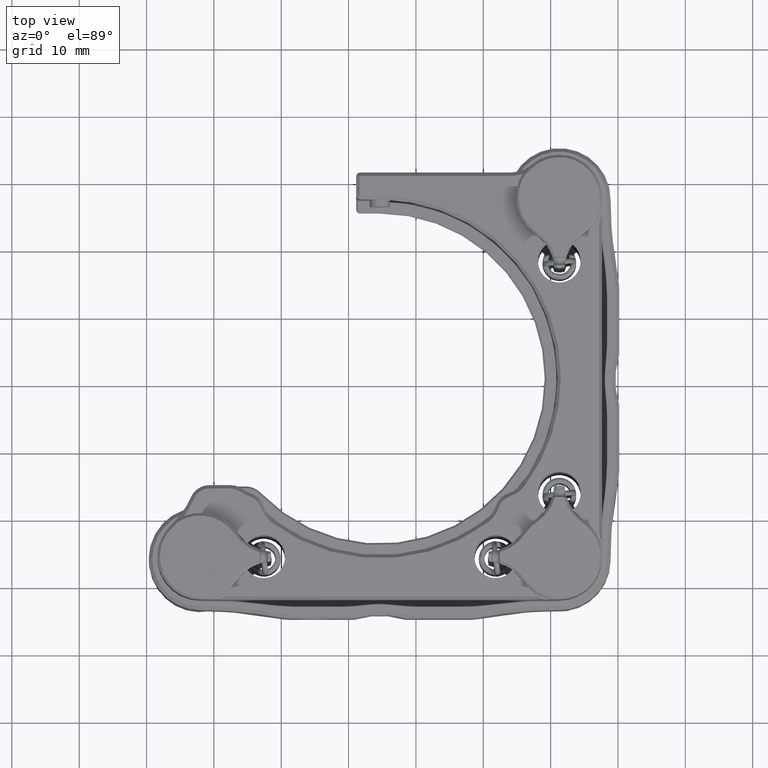
[diagram: clean part render]
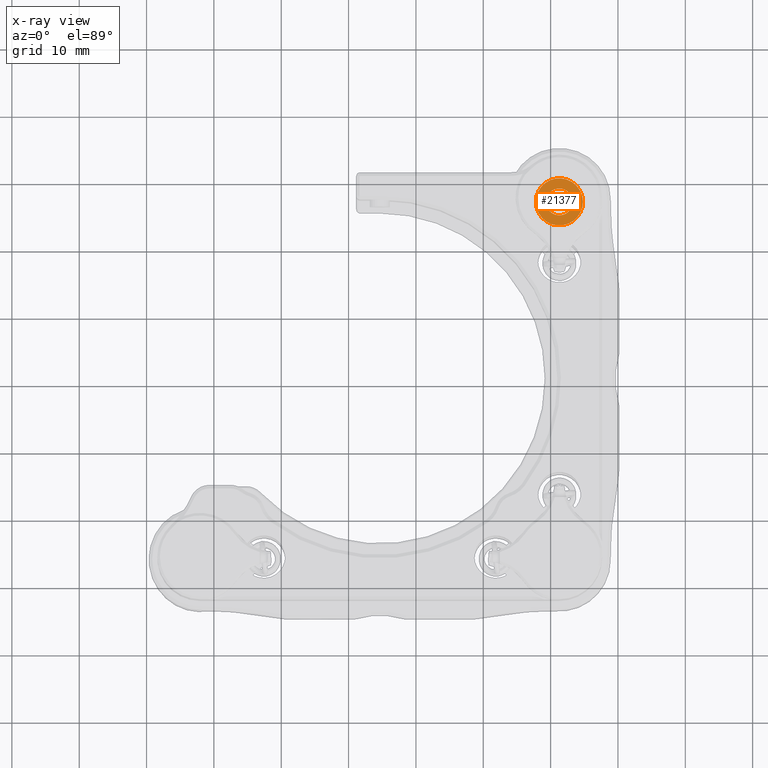
[diagram: x-ray — body ghosted, one internal face saturated and labeled with its STEP entity id]
A machine part, top view, then the same camera in x-ray: the body is ghosted and one INTERNAL B-rep face — a face not visible from any outside direction — is saturated and labeled: STEP entity #21377.
In plain terms, the highlighted planar face has unit normal (0, 0, 1).
Its self-contained STEP definition (entity closure, byte-faithful):
#1554 = CIRCLE ( 'NONE', #22182, 3.500000000000000444 ) ;
#2231 = VERTEX_POINT ( 'NONE', #25784 ) ;
#2866 = AXIS2_PLACEMENT_3D ( 'NONE', #18769, #7302, #20819 ) ;
#4828 = DIRECTION ( 'NONE',  ( 0.000000000000000000, 0.000000000000000000, -1.000000000000000000 ) ) ;
#5690 = CARTESIAN_POINT ( 'NONE',  ( 5.500000000000000888, 0.000000000000000000, 0.000000000000000000 ) ) ;
#5829 = ORIENTED_EDGE ( 'NONE', *, *, #26175, .T. ) ;
#6282 = DIRECTION ( 'NONE',  ( 1.000000000000000000, 0.000000000000000000, 0.000000000000000000 ) ) ;
#6919 = DIRECTION ( 'NONE',  ( 0.000000000000000000, 0.000000000000000000, -1.000000000000000000 ) ) ;
#6931 = ORIENTED_EDGE ( 'NONE', *, *, #12284, .F. ) ;
#7058 = CARTESIAN_POINT ( 'NONE',  ( 5.500000000000000888, 0.000000000000000000, 0.000000000000000000 ) ) ;
#7302 = DIRECTION ( 'NONE',  ( 1.000000000000000000, 0.000000000000000000, 0.000000000000000000 ) ) ;
#8985 = DIRECTION ( 'NONE',  ( 1.000000000000000000, 0.000000000000000000, 0.000000000000000000 ) ) ;
#9099 = CARTESIAN_POINT ( 'NONE',  ( 5.500000000000000888, 0.000000000000000000, 0.000000000000000000 ) ) ;
#9305 = EDGE_CURVE ( 'NONE', #21697, #14307, #23961, .T. ) ;
#9494 = CARTESIAN_POINT ( 'NONE',  ( 5.500000000000000888, 0.000000000000000000, 3.500000000000000444 ) ) ;
#9744 = ORIENTED_EDGE ( 'NONE', *, *, #9305, .T. ) ;
#10251 = PLANE ( 'NONE',  #13023 ) ;
#10264 = CARTESIAN_POINT ( 'NONE',  ( 5.500000000000000888, 0.000000000000000000, 0.000000000000000000 ) ) ;
#10539 = FACE_OUTER_BOUND ( 'NONE', #26619, .T. ) ;
#10671 = CARTESIAN_POINT ( 'NONE',  ( 5.500000000000000888, 4.286263797015737088E-16, -3.500000000000000444 ) ) ;
#11901 = EDGE_LOOP ( 'NONE', ( #6931, #19120 ) ) ;
#12284 = EDGE_CURVE ( 'NONE', #2231, #18260, #19239, .T. ) ;
#12688 = AXIS2_PLACEMENT_3D ( 'NONE', #9099, #15692, #4828 ) ;
#13023 = AXIS2_PLACEMENT_3D ( 'NONE', #5690, #23756, #28016 ) ;
#14055 = AXIS2_PLACEMENT_3D ( 'NONE', #7058, #8985, #6919 ) ;
#14155 = EDGE_CURVE ( 'NONE', #18260, #2231, #19749, .T. ) ;
#14307 = VERTEX_POINT ( 'NONE', #10671 ) ;
#15228 = DIRECTION ( 'NONE',  ( 0.000000000000000000, 0.000000000000000000, -1.000000000000000000 ) ) ;
#15426 = CARTESIAN_POINT ( 'NONE',  ( 5.500000000000000888, 2.449293598294706414E-16, -2.000000000000000000 ) ) ;
#15692 = DIRECTION ( 'NONE',  ( 1.000000000000000000, 0.000000000000000000, 0.000000000000000000 ) ) ;
#18260 = VERTEX_POINT ( 'NONE', #15426 ) ;
#18769 = CARTESIAN_POINT ( 'NONE',  ( 5.500000000000000888, 0.000000000000000000, 0.000000000000000000 ) ) ;
#19120 = ORIENTED_EDGE ( 'NONE', *, *, #14155, .F. ) ;
#19239 = CIRCLE ( 'NONE', #14055, 2.000000000000000000 ) ;
#19749 = CIRCLE ( 'NONE', #2866, 2.000000000000000000 ) ;
#20819 = DIRECTION ( 'NONE',  ( 0.000000000000000000, 0.000000000000000000, -1.000000000000000000 ) ) ;
#21377 = ADVANCED_FACE ( 'NONE', ( #23464, #10539 ), #10251, .T. ) ;
#21697 = VERTEX_POINT ( 'NONE', #9494 ) ;
#22182 = AXIS2_PLACEMENT_3D ( 'NONE', #10264, #6282, #15228 ) ;
#23464 = FACE_BOUND ( 'NONE', #11901, .T. ) ;
#23756 = DIRECTION ( 'NONE',  ( 1.000000000000000000, 0.000000000000000000, 0.000000000000000000 ) ) ;
#23961 = CIRCLE ( 'NONE', #12688, 3.500000000000000444 ) ;
#25784 = CARTESIAN_POINT ( 'NONE',  ( 5.500000000000000888, 0.000000000000000000, 2.000000000000000000 ) ) ;
#26175 = EDGE_CURVE ( 'NONE', #14307, #21697, #1554, .T. ) ;
#26619 = EDGE_LOOP ( 'NONE', ( #9744, #5829 ) ) ;
#28016 = DIRECTION ( 'NONE',  ( 0.000000000000000000, 0.000000000000000000, -1.000000000000000000 ) ) ;